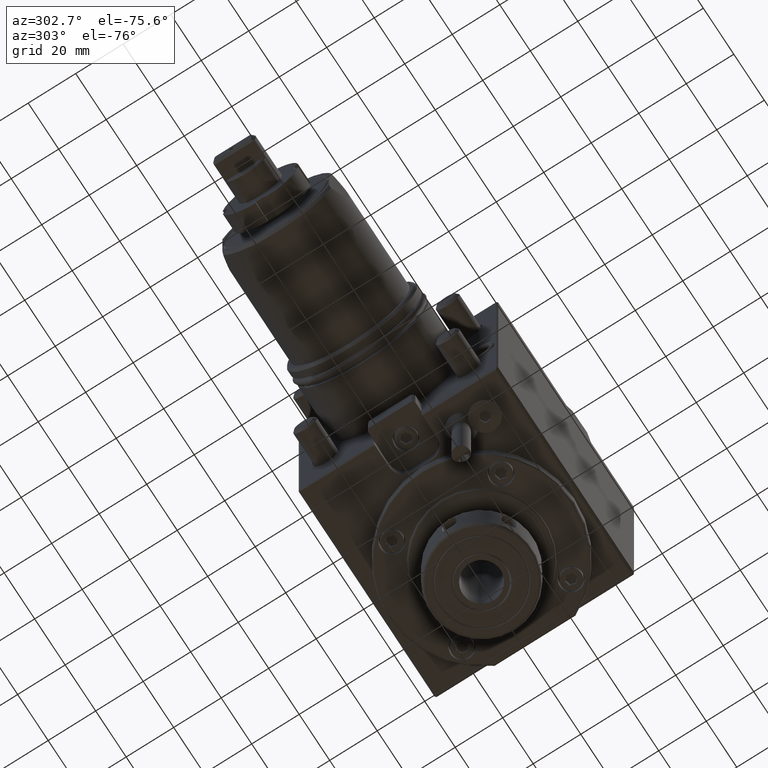
[diagram: clean part render]
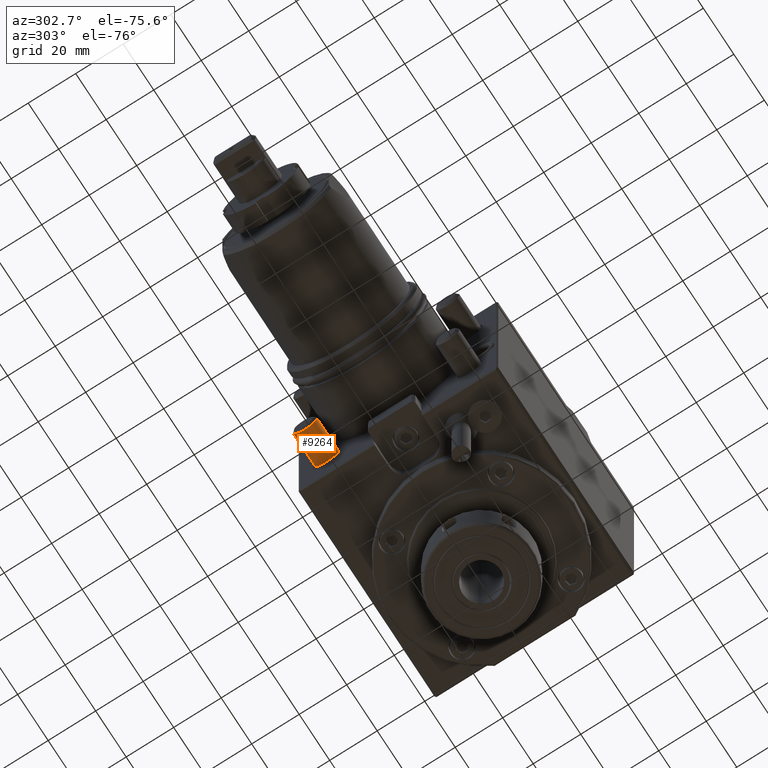
[diagram: same view with one face highlighted and labeled with its STEP entity id]
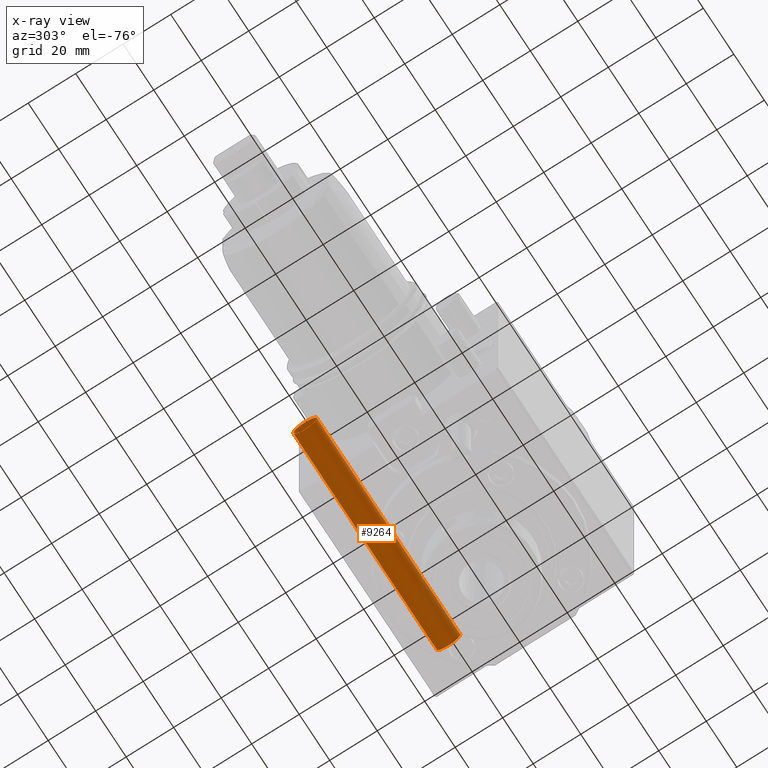
[diagram: x-ray of the same camera — body ghosted, the highlighted face saturated]
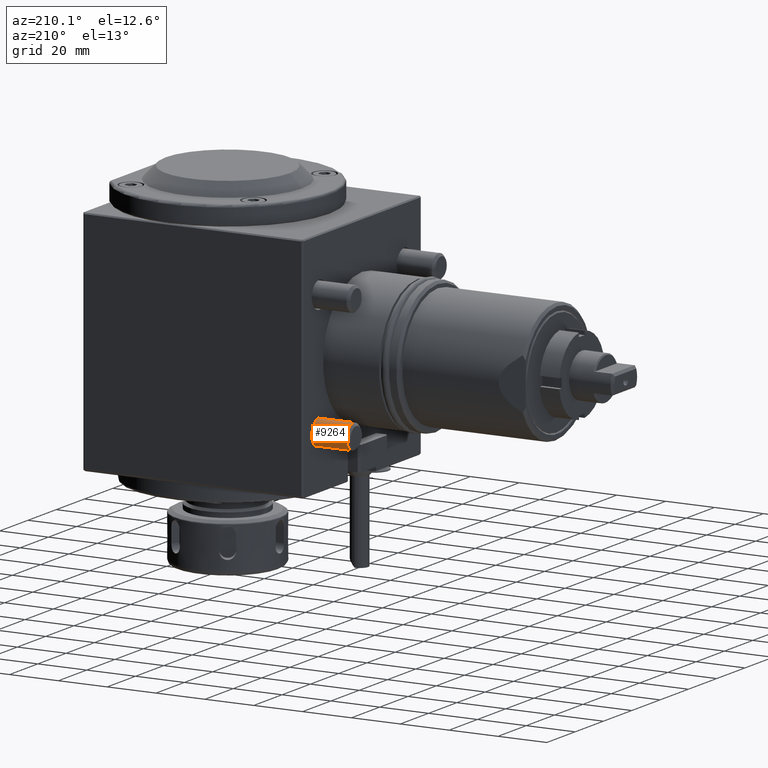
[diagram: same view with one face highlighted and labeled with its STEP entity id]
A machine part, auxiliary view. The second image highlights one B-rep face of the part: STEP entity #9264.
The next image is the same camera in x-ray: the body ghosted, the highlighted face saturated — about 12% of this face is hidden behind the body in this view.
A second angle (auxiliary view) of the same face is appended — the face is thin or edge-on in the first view.
In plain terms, the highlighted cylindrical surface (bore or boss wall) has radius 5 mm, axis along (1, -0, -0).
Its self-contained STEP definition (entity closure, byte-faithful):
#595 = CIRCLE ( 'NONE', #9277, 5.000000000000000888 ) ;
#690 = DIRECTION ( 'NONE',  ( 1.000000000000000000, -2.438088387897967896E-29, -6.982962677686266711E-15 ) ) ;
#873 = DIRECTION ( 'NONE',  ( 1.000000000000000000, -2.438088387897967896E-29, -6.982962677686266711E-15 ) ) ;
#1298 = EDGE_CURVE ( 'NONE', #6308, #6308, #3746, .T. ) ;
#2642 = DIRECTION ( 'NONE',  ( 0.000000000000000000, -1.000000000000000000, 3.469446951953613400E-15 ) ) ;
#3522 = CYLINDRICAL_SURFACE ( 'NONE', #7547, 5.000000000000000888 ) ;
#3549 = DIRECTION ( 'NONE',  ( 1.000000000000000000, -2.438088387897967896E-29, -6.982962677686266711E-15 ) ) ;
#3746 = CIRCLE ( 'NONE', #5262, 5.000000000000000888 ) ;
#4134 = CARTESIAN_POINT ( 'NONE',  ( 80.00000000001330136, 29.99999999998022915, -24.99999999999886313 ) ) ;
#4653 = CARTESIAN_POINT ( 'NONE',  ( 80.00000000001330136, 24.99999999998022915, -24.99999999999884537 ) ) ;
#5262 = AXIS2_PLACEMENT_3D ( 'NONE', #6390, #3549, #2642 ) ;
#5371 = ORIENTED_EDGE ( 'NONE', *, *, #9157, .F. ) ;
#5571 = FACE_OUTER_BOUND ( 'NONE', #5875, .T. ) ;
#5875 = EDGE_LOOP ( 'NONE', ( #10195 ) ) ;
#6308 = VERTEX_POINT ( 'NONE', #8058 ) ;
#6390 = CARTESIAN_POINT ( 'NONE',  ( -14.00000237943853065, 29.99999999998022915, -24.99999999999820943 ) ) ;
#7335 = DIRECTION ( 'NONE',  ( 0.000000000000000000, -1.000000000000000000, 3.469446951953613400E-15 ) ) ;
#7547 = AXIS2_PLACEMENT_3D ( 'NONE', #9081, #873, #7335 ) ;
#7814 = DIRECTION ( 'NONE',  ( 0.000000000000000000, -1.000000000000000000, 3.469446951953613400E-15 ) ) ;
#8058 = CARTESIAN_POINT ( 'NONE',  ( -14.00000237943853065, 24.99999999998022915, -24.99999999999819167 ) ) ;
#9081 = CARTESIAN_POINT ( 'NONE',  ( 100.4999984589037041, 29.99999999998022915, -24.99999999999900524 ) ) ;
#9157 = EDGE_CURVE ( 'NONE', #11924, #11924, #595, .T. ) ;
#9264 = ADVANCED_FACE ( 'NONE', ( #5571, #9919 ), #3522, .T. ) ;
#9277 = AXIS2_PLACEMENT_3D ( 'NONE', #4134, #690, #7814 ) ;
#9919 = FACE_OUTER_BOUND ( 'NONE', #10477, .T. ) ;
#10195 = ORIENTED_EDGE ( 'NONE', *, *, #1298, .T. ) ;
#10477 = EDGE_LOOP ( 'NONE', ( #5371 ) ) ;
#11924 = VERTEX_POINT ( 'NONE', #4653 ) ;